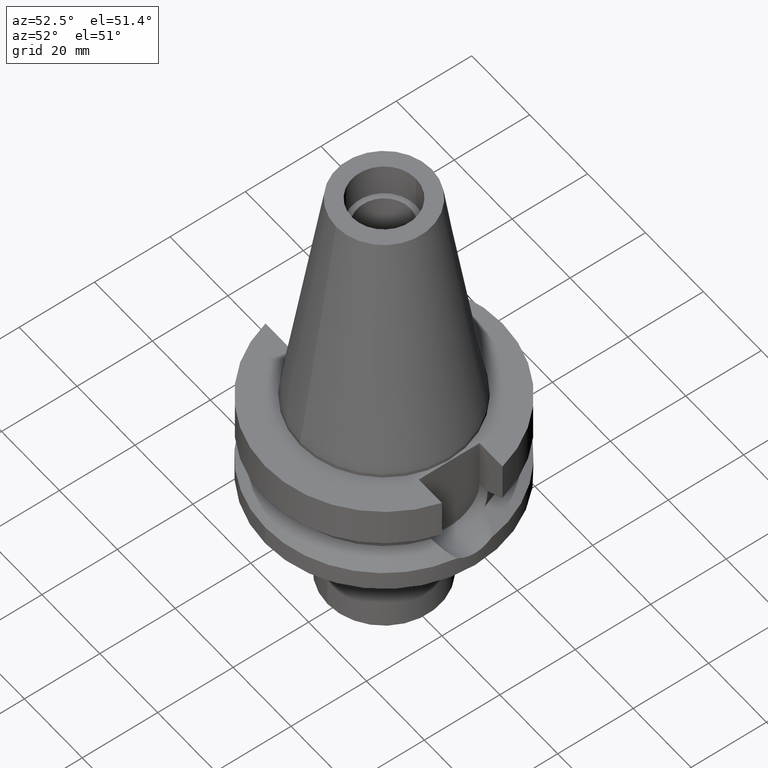
[diagram: clean part render]
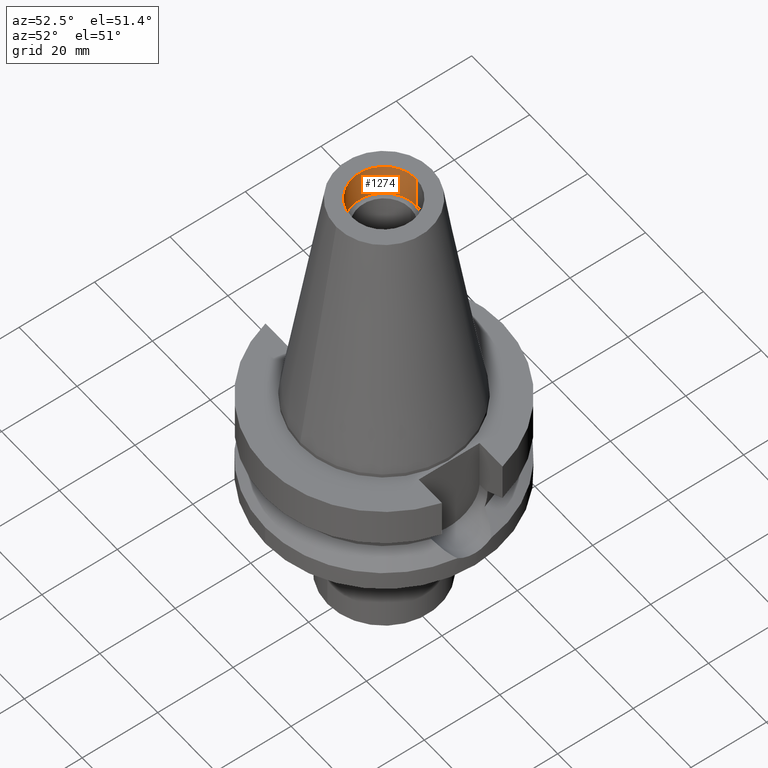
[diagram: same view with one face highlighted and labeled with its STEP entity id]
A machine part, auxiliary view. The second image highlights one B-rep face of the part: STEP entity #1274.
In plain terms, the highlighted cylindrical surface (partial cylindrical patch) has radius 8.5 mm, axis along (0, 0, -1).
Its self-contained STEP definition (entity closure, byte-faithful):
#134 = DIRECTION ( 'NONE',  ( 0.0000000000000000000, 1.000000000000000000, 0.0000000000000000000 ) ) ;
#159 = CIRCLE ( 'NONE', #2210, 8.500000000000000000 ) ;
#332 = DIRECTION ( 'NONE',  ( 0.0000000000000000000, 0.0000000000000000000, -1.000000000000000000 ) ) ;
#404 = ORIENTED_EDGE ( 'NONE', *, *, #2592, .T. ) ;
#524 = DIRECTION ( 'NONE',  ( 0.0000000000000000000, -1.000000000000000000, 0.0000000000000000000 ) ) ;
#542 = AXIS2_PLACEMENT_3D ( 'NONE', #1050, #1281, #134 ) ;
#554 = CARTESIAN_POINT ( 'NONE',  ( 0.0000000000000000000, 0.0000000000000000000, 0.0000000000000000000 ) ) ;
#726 = DIRECTION ( 'NONE',  ( 0.0000000000000000000, 0.0000000000000000000, 1.000000000000000000 ) ) ;
#789 = DIRECTION ( 'NONE',  ( 0.0000000000000000000, 0.0000000000000000000, 1.000000000000000000 ) ) ;
#946 = LINE ( 'NONE', #1260, #2299 ) ;
#977 = CYLINDRICAL_SURFACE ( 'NONE', #1765, 8.500000000000000000 ) ;
#992 = VERTEX_POINT ( 'NONE', #2621 ) ;
#1050 = CARTESIAN_POINT ( 'NONE',  ( 0.0000000000000000000, 0.0000000000000000000, 65.40000000000000568 ) ) ;
#1116 = CIRCLE ( 'NONE', #542, 8.500000000000000000 ) ;
#1260 = CARTESIAN_POINT ( 'NONE',  ( 0.0000000000000000000, -8.500000000000000000, 56.39999999999999858 ) ) ;
#1274 = ADVANCED_FACE ( 'NONE', ( #1704 ), #977, .F. ) ;
#1281 = DIRECTION ( 'NONE',  ( 0.0000000000000000000, 0.0000000000000000000, 1.000000000000000000 ) ) ;
#1426 = VECTOR ( 'NONE', #726, 1000.000000000000000 ) ;
#1440 = ORIENTED_EDGE ( 'NONE', *, *, #1532, .T. ) ;
#1445 = CARTESIAN_POINT ( 'NONE',  ( 0.0000000000000000000, 8.500000000000000000, 65.40000000000000568 ) ) ;
#1484 = DIRECTION ( 'NONE',  ( 0.0000000000000000000, 0.0000000000000000000, -1.000000000000000000 ) ) ;
#1532 = EDGE_CURVE ( 'NONE', #2540, #992, #1116, .T. ) ;
#1644 = EDGE_CURVE ( 'NONE', #2959, #992, #946, .T. ) ;
#1704 = FACE_OUTER_BOUND ( 'NONE', #1916, .T. ) ;
#1765 = AXIS2_PLACEMENT_3D ( 'NONE', #554, #1484, #2425 ) ;
#1916 = EDGE_LOOP ( 'NONE', ( #1440, #2722, #404, #2892 ) ) ;
#2069 = VERTEX_POINT ( 'NONE', #2886 ) ;
#2190 = CARTESIAN_POINT ( 'NONE',  ( 0.0000000000000000000, -8.500000000000000000, 56.39999999999999858 ) ) ;
#2210 = AXIS2_PLACEMENT_3D ( 'NONE', #2379, #332, #524 ) ;
#2299 = VECTOR ( 'NONE', #789, 1000.000000000000000 ) ;
#2379 = CARTESIAN_POINT ( 'NONE',  ( 0.0000000000000000000, 0.0000000000000000000, 56.39999999999999858 ) ) ;
#2425 = DIRECTION ( 'NONE',  ( 0.0000000000000000000, -1.000000000000000000, 0.0000000000000000000 ) ) ;
#2540 = VERTEX_POINT ( 'NONE', #1445 ) ;
#2592 = EDGE_CURVE ( 'NONE', #2959, #2069, #159, .T. ) ;
#2621 = CARTESIAN_POINT ( 'NONE',  ( 0.0000000000000000000, -8.500000000000000000, 65.40000000000000568 ) ) ;
#2722 = ORIENTED_EDGE ( 'NONE', *, *, #1644, .F. ) ;
#2825 = LINE ( 'NONE', #3006, #1426 ) ;
#2861 = EDGE_CURVE ( 'NONE', #2069, #2540, #2825, .T. ) ;
#2886 = CARTESIAN_POINT ( 'NONE',  ( 0.0000000000000000000, 8.500000000000000000, 56.39999999999999858 ) ) ;
#2892 = ORIENTED_EDGE ( 'NONE', *, *, #2861, .T. ) ;
#2959 = VERTEX_POINT ( 'NONE', #2190 ) ;
#3006 = CARTESIAN_POINT ( 'NONE',  ( 0.0000000000000000000, 8.500000000000000000, 56.39999999999999858 ) ) ;